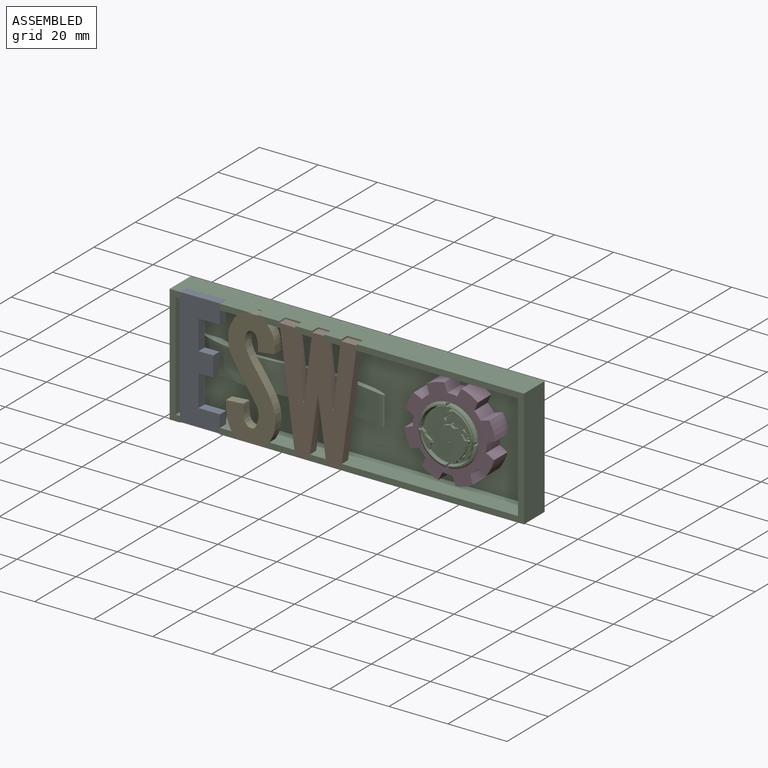
[diagram: assembled view]
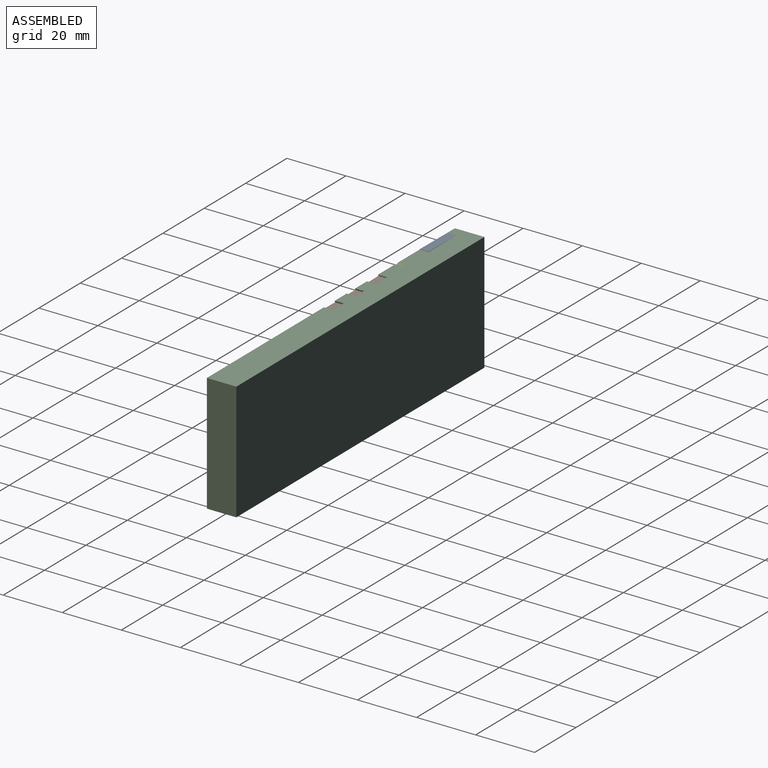
[diagram: assembled view, second angle]
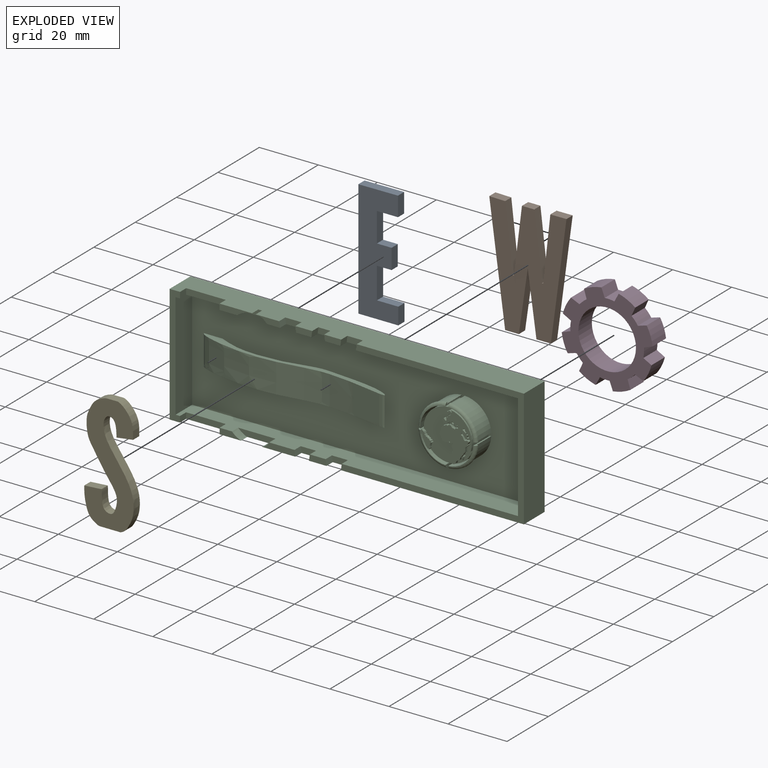
[diagram: exploded view]
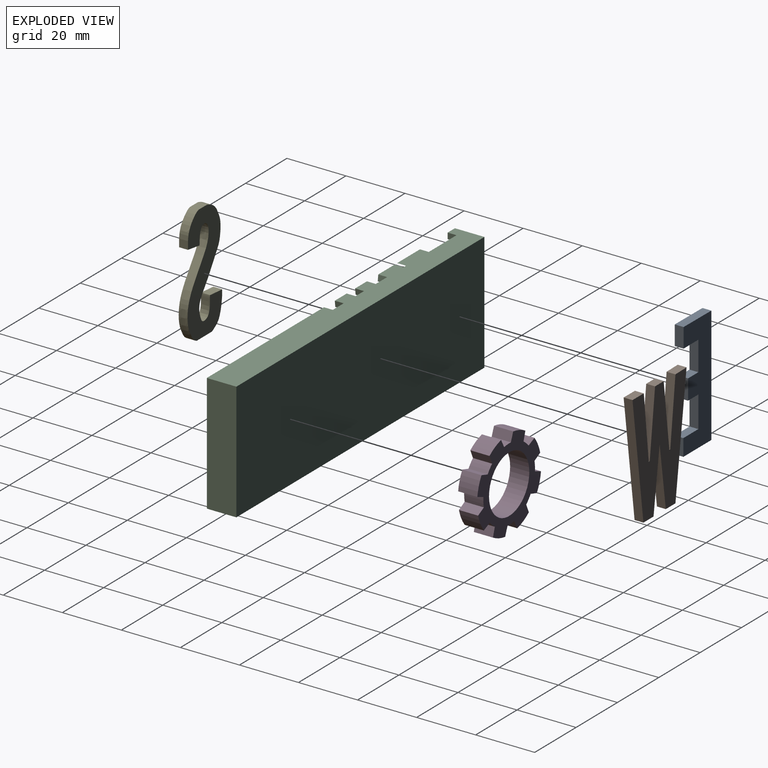
[diagram: exploded view, second angle]
ASSEMBLY  parts=5 mates=4
PART A: 14 faces, bbox 13.5x3x39.7 mm
  f0: plane 7.14x3mm, normal (0,0,-1), area 21.4mm2, adj f1,f11,f12,f13
  f1: plane 6.6x3mm, normal (1,0,0), area 19.8mm2, adj f0,f2,f12,f13
  f2: plane 13.41x3mm, normal (-0.01,0,1), area 40.2mm2, adj f1,f3,f12,f13
  f3: plane 39.61x3mm, normal (-1,0,0), area 118.8mm2, adj f2,f4,f12,f13
  f4: plane 13.52x3mm, normal (0,0,-1), area 40.6mm2, adj f3,f5,f12,f13
  f5: plane 5.73x3mm, normal (1,0,0), area 17.2mm2, adj f4,f6,f12,f13
  f6: plane 7.25x3mm, normal (0,0,1), area 21.7mm2, adj f5,f7,f12,f13
  f7: plane 10.6x3mm, normal (1,0,0), area 31.8mm2, adj f6,f8,f12,f13
  f8: plane 4.98x3mm, normal (0,0,-1), area 14.9mm2, adj f7,f9,f12,f13
  f9: plane 6.81x3mm, normal (1,0,0), area 20.4mm2, adj f8,f10,f12,f13
  f10: plane 4.98x3mm, normal (0,0,1), area 14.9mm2, adj f9,f11,f12,f13
  f11: plane 9.95x3mm, normal (1,0,0), area 29.9mm2, adj f0,f10,f12,f13
  f12: plane 39.69x13.52mm, normal (0,-1,0), area 371mm2, adj f0,f1,f2,f3,f4,f5,f6,f7
  f13: plane 39.69x13.52mm, normal (0,1,0), area 371mm2, adj f0,f1,f2,f3,f4,f5,f6,f7
PART B: 17 faces, bbox 26.2x3x39.6 mm
  f0: plane 4.89x3mm, normal (0,0,-1), area 14.7mm2, adj f1,f14,f15,f16
  f1: plane 39.53x5.29mm, normal (0.99,0,-0.13), area 119.6mm2, adj f0,f2,f15,f16
  f2: plane 5.47x3mm, normal (-0.01,0,1), area 16.4mm2, adj f1,f3,f15,f16
  f3: plane 21.82x3mm, normal (-0.99,0,0.11), area 65.9mm2, adj f2,f4,f15,f16
  f4: plane 3x0.45mm, normal (0,0,1), area 1.4mm2, adj f3,f5,f15,f16
  f5: plane 21.88x3mm, normal (0.99,0,0.12), area 66.1mm2, adj f4,f6,f15,f16
  f6: plane 4.16x3mm, normal (0,0,1), area 12.5mm2, adj f5,f7,f15,f16
  f7: plane 22.05x3mm, normal (-0.99,0,0.12), area 66.7mm2, adj f6,f8,f15,f16
  f8: plane 3x0.47mm, normal (0,0,1), area 1.4mm2, adj f7,f9,f15,f16
  f9: plane 21.96x3mm, normal (0.99,0,0.11), area 66.3mm2, adj f8,f10,f15,f16
  f10: plane 5.37x3mm, normal (0.02,0,1), area 16.1mm2, adj f9,f11,f15,f16
  f11: plane 39.57x5.37mm, normal (-0.99,0,-0.13), area 119.8mm2, adj f10,f12,f15,f16
  f12: plane 4.66x3mm, normal (0,0,-1), area 14mm2, adj f11,f13,f15,f16
  f13: plane 20.98x3mm, normal (0.99,0,-0.14), area 63.6mm2, adj f12,f14,f15,f16
  f14: plane 20.98x3mm, normal (-0.99,0,-0.14), area 63.6mm2, adj f0,f13,f15,f16
  f15: plane 39.57x26.15mm, normal (0,-1,0), area 627.9mm2, adj f0,f1,f2,f3,f4,f5,f6,f7
  f16: plane 39.57x26.15mm, normal (0,1,0), area 627.9mm2, adj f0,f1,f2,f3,f4,f5,f6,f7
PART C: 96 faces, bbox 120x10x40.1 mm
  f0: cylinder r=9.5mm len=8.96mm, axis (0,1,0), area 97mm2, adj f21,f52,f54,f68
  f1: cylinder r=9.5mm len=8.96mm, axis (0,1,0), area 97mm2, adj f21,f55,f57,f69
  f2: cylinder r=9.5mm len=8.96mm, axis (0,1,0), area 97mm2, adj f21,f58,f60,f73
  f3: plane 7.3x2.04mm, normal (0,-1,0), area 10.9mm2, adj f15,f19,f29,f32
  f4: plane 11.32x2.07mm, normal (0,-1,0), area 19.2mm2, adj f15,f19,f25,f28
  f5: plane 40x3.5mm, normal (0,-1,0), area 86mm2, adj f12,f13,f14,f15,f18,f19,f31,f34
  f6: plane 5.94x2mm, normal (0,-1,0), area 11.3mm2, adj f15,f19,f22,f26
  f7: plane 61.98x40mm, normal (0,-1,0), area 309.3mm2, adj f12,f13,f15,f16,f19,f20,f23,f47
  f8: plane 5.76x2mm, normal (0,-1,0), area 11mm2, adj f12,f13,f44,f48
  f9: plane 8.2x2.08mm, normal (0,-1,0), area 11mm2, adj f12,f13,f39,f41
  f10: plane 11.08x2.1mm, normal (0,-1,0), area 15.4mm2, adj f12,f13,f36,f38
  f11: plane 5.71x2mm, normal (0,-1,0), area 11mm2, adj f12,f13,f42,f45
  f12: plane 120x10mm, normal (0,0,1), area 1111.6mm2, adj f5,f7,f8,f9,f10,f11,f14,f16
  f13: plane 116x8mm, normal (0,0,-1), area 811.7mm2, adj f5,f7,f8,f9,f10,f11,f18,f20
  f14: plane 40x10mm, normal (-1,0,0), area 400mm2, adj f5,f12,f15,f17
  f15: plane 120x10mm, normal (0,0,-1), area 1109.9mm2, adj f3,f4,f5,f6,f7,f14,f16,f17
  f16: plane 40x10mm, normal (1,0,0), area 400mm2, adj f7,f12,f15,f17
  f17: plane 120x40mm, normal (0,1,0), area 4800mm2, adj f12,f14,f15,f16
  f18: plane 36x8mm, normal (1,0,0), area 288mm2, adj f5,f13,f19,f21
  f19: plane 116x8mm, normal (0,0,1), area 818mm2, adj f3,f4,f5,f6,f7,f18,f20,f21
  f20: plane 36x8mm, normal (-1,0,0), area 288mm2, adj f7,f13,f19,f21
  f21: plane 116x36mm, normal (0,-1,0), area 3859.9mm2, adj f0,f1,f2,f13,f18,f19,f20,f50
  f22: plane 3x2mm, normal (0.99,0,0.14), area 6.1mm2, adj f6,f15,f19,f24
  f23: plane 3x2mm, normal (-0.99,0,0.13), area 6.1mm2, adj f7,f15,f19,f24
  f24: plane 5.43x2mm, normal (0,-1,0), area 10.3mm2, adj f15,f19,f22,f23
  f25: plane 3x2mm, normal (0.99,0,0.14), area 6.1mm2, adj f4,f15,f19,f27
  f26: plane 3x2mm, normal (-0.99,0,0.14), area 6.1mm2, adj f6,f15,f19,f27
  f27: plane 5.2x2mm, normal (0,-1,0), area 9.8mm2, adj f15,f19,f25,f26
  f28: extruded ~3x2.41mm, area 9.6mm2, adj f4,f15,f19,f30
  f29: extruded ~3.11x3mm, area 11.2mm2, adj f3,f15,f19,f30
  f30: plane 12.72x2.07mm, normal (0,-1,0), area 20.9mm2, adj f15,f19,f28,f29
  f31: plane 3x2mm, normal (1,0,0), area 6mm2, adj f5,f15,f19,f33
  f32: plane 3x2mm, normal (-1,0,0), area 6mm2, adj f3,f15,f19,f33
  f33: plane 13.41x2mm, normal (0,-1,0), area 26.8mm2, adj f15,f19,f31,f32
  f34: plane 3x0.39mm, normal (1,0,0.01), area 1.2mm2, adj f5,f12,f35,f37
  f35: plane 3x1.61mm, normal (1,0,0), area 4.8mm2, adj f5,f13,f34,f37
  f36: plane 3x2mm, normal (-1,0,0), area 6mm2, adj f10,f12,f13,f37
  f37: plane 13.42x2mm, normal (0,-1,0), area 26.8mm2, adj f12,f13,f34,f35,f36
  f38: extruded ~5.1x3mm, area 16.7mm2, adj f10,f12,f13,f40
  f39: extruded ~3.79x3mm, area 13.2mm2, adj f9,f12,f13,f40
  f40: plane 10.22x2.1mm, normal (0,-1,0), area 14.2mm2, adj f12,f13,f38,f39
  f41: plane 3x2mm, normal (0.99,0,0.14), area 6.1mm2, adj f9,f12,f13,f43
  f42: plane 3x2mm, normal (-0.99,0,-0.11), area 6mm2, adj f11,f12,f13,f43
  f43: plane 5.72x2mm, normal (0,-1,0), area 10.9mm2, adj f12,f13,f41,f42
  f44: plane 3x2mm, normal (-0.99,0,-0.12), area 6mm2, adj f8,f12,f13,f46
  f45: plane 3x2mm, normal (0.99,0,-0.12), area 6mm2, adj f11,f12,f13,f46
  f46: plane 4.54x2mm, normal (0,-1,0), area 8.6mm2, adj f12,f13,f44,f45
  f47: plane 3x2mm, normal (-0.99,0,0.13), area 6.1mm2, adj f7,f12,f13,f49
  f48: plane 3x2mm, normal (0.99,0,-0.12), area 6mm2, adj f8,f12,f13,f49
  f49: plane 5.5x2mm, normal (0,-1,0), area 10.5mm2, adj f12,f13,f47,f48
  f50: cylinder r=9.5mm len=8.96mm, axis (0,1,0), area 97mm2, adj f21,f51,f61,f77
  f51: plane 7x0.5mm, normal (1,0,0), area 3.5mm2, adj f21,f50,f62,f77
  f52: plane 7x0.5mm, normal (-1,0,0), area 3.5mm2, adj f0,f21,f53,f68
  f53: cylinder r=9mm len=8.46mm, axis (0,-1,0), area 91.5mm2, adj f21,f52,f54,f67
  f54: plane 7x0.5mm, normal (0,0,1), area 3.5mm2, adj f0,f21,f53,f68
  f55: plane 7x0.5mm, normal (0,0,-1), area 3.5mm2, adj f1,f21,f56,f69
  f56: cylinder r=9mm len=8.46mm, axis (0,-1,0), area 91.5mm2, adj f21,f55,f57,f70
  f57: plane 7x0.5mm, normal (-1,0,0), area 3.5mm2, adj f1,f21,f56,f69
  f58: plane 7x0.5mm, normal (1,0,0), area 3.5mm2, adj f2,f21,f59,f73
  f59: cylinder r=9mm len=8.46mm, axis (0,-1,0), area 91.5mm2, adj f21,f58,f60,f75
  f60: plane 7x0.5mm, normal (0,0,-1), area 3.5mm2, adj f2,f21,f59,f73
  f61: plane 7x0.5mm, normal (0,0,1), area 3.5mm2, adj f21,f50,f62,f77
  f62: cylinder r=9mm len=8.46mm, axis (0,-1,0), area 91.5mm2, adj f21,f51,f61,f78
  f63: cylinder r=8.5mm len=17mm, axis (0,-1,0), area 373.8mm2, adj f21,f64,f85,f89
  f64: plane 17.02x16.81mm, normal (0,-1,0), area 144.1mm2, adj f63,f86,f88,f91
  f65: plane 1.03x1.02mm, normal (-1,0,0), area 0.8mm2, adj f67,f68,f81
  f66: plane 1.03x1.02mm, normal (0,0,1), area 0.8mm2, adj f67,f68,f81
  f67: cylinder r=9mm len=8.49mm, axis (0,1,0), area 13.1mm2, adj f53,f65,f66,f68,f81
  f68: plane 9.49x9.49mm, normal (0,1,0), area 7.2mm2, adj f0,f52,f54,f65,f66,f67,f81
  f69: plane 9.49x9.49mm, normal (0,1,0), area 7.1mm2, adj f1,f55,f57,f70,f71,f72,f82
  f70: cylinder r=9mm len=8.49mm, axis (0,1,0), area 13.1mm2, adj f56,f69,f71,f72,f82
  f71: plane 1.03x1.02mm, normal (0,0,-1), area 0.8mm2, adj f69,f70,f82
  f72: plane 1.03x1.02mm, normal (-1,0,0), area 0.8mm2, adj f69,f70,f82
  f73: plane 9.49x9.49mm, normal (0,1,0), area 7.2mm2, adj f2,f58,f60,f74,f75,f76,f84
  f74: plane 1.03x1.02mm, normal (0,0,-1), area 0.8mm2, adj f73,f75,f84
  f75: cylinder r=9mm len=8.49mm, axis (0,1,0), area 13.1mm2, adj f59,f73,f74,f76,f84
  f76: plane 1.03x1.02mm, normal (1,0,0), area 0.8mm2, adj f73,f75,f84
  f77: plane 9.49x9.49mm, normal (0,1,0), area 7.2mm2, adj f50,f51,f61,f78,f79,f80,f83
  f78: cylinder r=9mm len=8.49mm, axis (0,1,0), area 13.1mm2, adj f62,f77,f79,f80,f83
  f79: plane 1.03x1.02mm, normal (0,0,1), area 0.8mm2, adj f77,f78,f83
  f80: plane 1.03x1.02mm, normal (1,0,0), area 0.8mm2, adj f77,f78,f83
  f81: torus R=9mm, axis (0,-1,0), area 22.2mm2, adj f65,f66,f67,f68
  f82: torus R=9mm, axis (0,-1,0), area 22.2mm2, adj f69,f70,f71,f72
  f83: torus R=9mm, axis (0,-1,0), area 22.2mm2, adj f77,f78,f79,f80
  f84: torus R=9mm, axis (0,-1,0), area 22.2mm2, adj f73,f74,f75,f76
  f85: cylinder r=8.5mm len=11mm, axis (0,1,0), area 14.7mm2, adj f63,f86,f87
  f86: extruded ~15.47x10.48mm, area 71mm2, adj f64,f85,f87
  f87: plane 16.4x11.02mm, normal (0,-1,0), area 87.1mm2, adj f85,f86
  f88: extruded ~5.44x3.29mm, area 8.6mm2, adj f64,f89,f90
  f89: cylinder r=8.5mm len=5.28mm, axis (0,1,0), area 5.8mm2, adj f63,f88,f90
  f90: plane 5.48x3.32mm, normal (0,-1,0), area 7.6mm2, adj f88,f89
  f91: extruded ~1.91x1.37mm, area 5.1mm2, adj f64,f92
  f92: plane 1.96x1.42mm, normal (0,-1,0), area 0.9mm2, adj f91
  f93: extruded ~64.22x10mm, area 1275.2mm2, adj f21,f94,f95
  f94: plane 65.12x6.05mm, normal (0,0,-1), area 99mm2, adj f21,f93
  f95: plane 65.12x6.05mm, normal (0,0,1), area 99mm2, adj f21,f93
PART D: 35 faces, bbox 30.5x6.5x30.5 mm
  f0: plane 6.5x2.94mm, normal (-0.34,0,0.94), area 20.3mm2, adj f1,f32,f33,f34
  f1: cylinder r=12.5mm len=6.5mm, axis (0,1,0), area 21.4mm2, adj f0,f2,f33,f34
  f2: plane 6.5x2.92mm, normal (0.93,0,-0.36), area 20.3mm2, adj f1,f3,f33,f34
  f3: cylinder r=15.51mm len=6.5mm, axis (0,1,0), area 40.8mm2, adj f2,f4,f33,f34
  f4: plane 6.5x2.83mm, normal (-0.91,0,0.42), area 20.3mm2, adj f3,f5,f33,f34
  f5: cylinder r=12.5mm len=6.5mm, axis (0,1,0), area 21.4mm2, adj f4,f6,f33,f34
  f6: plane 6.5x2.85mm, normal (0.91,0,0.41), area 20.3mm2, adj f5,f7,f33,f34
  f7: cylinder r=15.51mm len=6.5mm, axis (0,1,0), area 40.8mm2, adj f6,f8,f33,f34
  f8: plane 6.5x2.94mm, normal (-0.94,0,-0.34), area 20.3mm2, adj f7,f9,f33,f34
  f9: cylinder r=12.5mm len=6.5mm, axis (0,1,0), area 21.4mm2, adj f8,f10,f33,f34
  f10: plane 6.5x2.92mm, normal (0.36,0,0.93), area 20.3mm2, adj f9,f11,f33,f34
  f11: cylinder r=15.51mm len=6.5mm, axis (0,1,0), area 40.8mm2, adj f10,f12,f33,f34
  f12: plane 6.5x2.83mm, normal (-0.42,0,-0.91), area 20.3mm2, adj f11,f13,f33,f34
  f13: cylinder r=12.5mm len=6.5mm, axis (0,1,0), area 21.4mm2, adj f12,f14,f33,f34
  f14: plane 6.5x2.85mm, normal (-0.41,0,0.91), area 20.3mm2, adj f13,f15,f33,f34
  f15: cylinder r=15.51mm len=6.5mm, axis (0,1,0), area 40.8mm2, adj f14,f16,f33,f34
  f16: plane 6.5x2.94mm, normal (0.34,0,-0.94), area 20.3mm2, adj f15,f17,f33,f34
  f17: cylinder r=12.5mm len=6.5mm, axis (0,1,0), area 21.4mm2, adj f16,f18,f33,f34
  f18: plane 6.5x2.92mm, normal (-0.93,0,0.36), area 20.3mm2, adj f17,f19,f33,f34
  f19: cylinder r=15.51mm len=6.5mm, axis (0,1,0), area 40.8mm2, adj f18,f20,f33,f34
  f20: plane 6.5x2.83mm, normal (0.91,0,-0.42), area 20.3mm2, adj f19,f21,f33,f34
  f21: cylinder r=12.5mm len=6.5mm, axis (0,1,0), area 21.4mm2, adj f20,f22,f33,f34
  f22: plane 6.5x2.85mm, normal (-0.91,0,-0.41), area 20.3mm2, adj f21,f23,f33,f34
  f23: cylinder r=15.51mm len=6.5mm, axis (0,1,0), area 40.8mm2, adj f22,f24,f33,f34
  f24: plane 6.5x2.94mm, normal (0.94,0,0.34), area 20.3mm2, adj f23,f25,f33,f34
  f25: cylinder r=12.5mm len=6.5mm, axis (0,1,0), area 21.4mm2, adj f24,f26,f33,f34
  f26: plane 6.5x2.92mm, normal (-0.36,0,-0.93), area 20.3mm2, adj f25,f27,f33,f34
  f27: cylinder r=15.51mm len=6.5mm, axis (0,1,0), area 40.8mm2, adj f26,f28,f33,f34
  f28: plane 6.5x2.83mm, normal (0.42,0,0.91), area 20.3mm2, adj f27,f29,f33,f34
  f29: cylinder r=12.5mm len=6.5mm, axis (0,1,0), area 21.4mm2, adj f28,f30,f33,f34
  f30: plane 6.5x2.85mm, normal (0.41,0,-0.91), area 20.3mm2, adj f29,f32,f33,f34
  f31: cylinder r=9.75mm len=19.5mm, axis (0,1,0), area 398.2mm2, adj f33,f34
  f32: cylinder r=15.51mm len=6.5mm, axis (0,1,0), area 40.8mm2, adj f0,f30,f33,f34
  f33: plane 30.51x30.51mm, normal (0,-1,0), area 346.5mm2, adj f0,f1,f2,f3,f4,f5,f6,f7
  f34: plane 30.51x30.51mm, normal (0,1,0), area 346.5mm2, adj f0,f1,f2,f3,f4,f5,f6,f7
PART E: 10 faces, bbox 16.9x3x39.8 mm
  f0: plane 4x3mm, normal (-0.01,0,1), area 12mm2, adj f1,f7,f8,f9
  f1: extruded ~35.02x10.29mm, area 150.2mm2, adj f0,f2,f8,f9
  f2: plane 5.86x3mm, normal (-0.07,0,1), area 17.6mm2, adj f1,f3,f8,f9
  f3: extruded ~11.06x5.18mm, area 39.6mm2, adj f2,f4,f8,f9
  f4: plane 7.09x3mm, normal (0,0,-1), area 21.3mm2, adj f3,f5,f8,f9
  f5: extruded ~34.48x10.21mm, area 139.9mm2, adj f4,f6,f8,f9
  f6: plane 5.59x3mm, normal (0.14,0,-0.99), area 16.9mm2, adj f5,f7,f8,f9
  f7: extruded ~10.33x5.21mm, area 37.3mm2, adj f0,f6,f8,f9
  f8: plane 39.78x16.87mm, normal (0,-1,0), area 381mm2, adj f0,f1,f2,f3,f4,f5,f6,f7
  f9: plane 39.78x16.87mm, normal (0,1,0), area 381mm2, adj f0,f1,f2,f3,f4,f5,f6,f7
PLACE A t=(-30.24,19.05,20.01)mm
PLACE B t=(-30.21,19.05,19.61)mm
PLACE C t=(-31.18,26.05,3.68)mm fixed
PLACE D rot(axis=(-0.04,0,-1),180deg) t=(50.28,17.55,11.06)mm
PLACE E t=(-30.24,19.05,19.61)mm
MATE revolute C.f0 <-> D.f1  axis (0,-1,0) through (18.3,24.05,33.48)mm
MATE fastened B.f15 <-> C.f4  axis (0,-1,0) through (-32.99,16.05,13.48)mm
MATE fastened A.f12 <-> C.f5  axis (0,-1,0) through (-72.05,16.05,53.48)mm
MATE fastened E.f8 <-> C.f3  axis (0,-1,0) through (-51.33,16.05,13.48)mm
